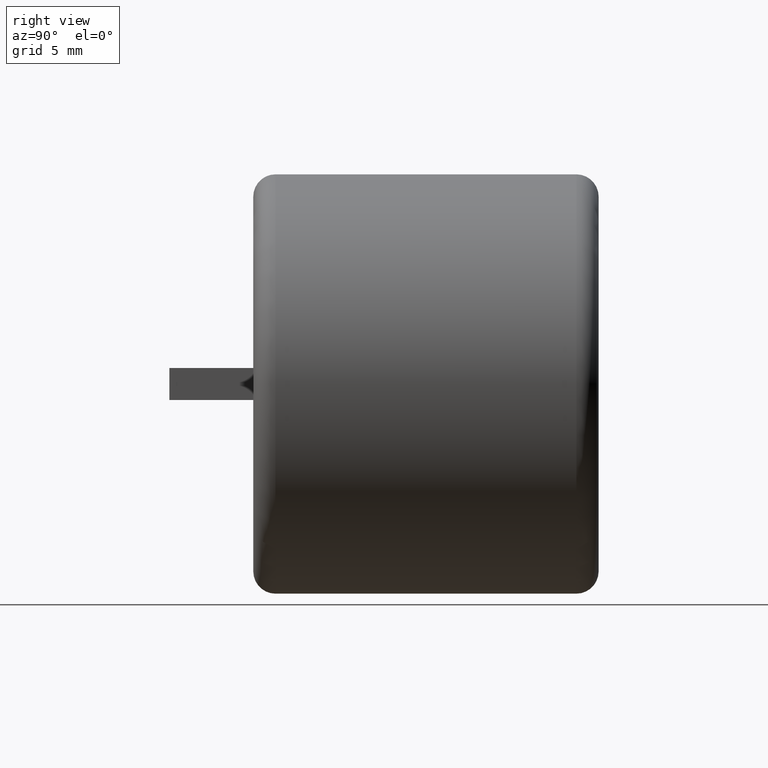
[diagram: clean part render]
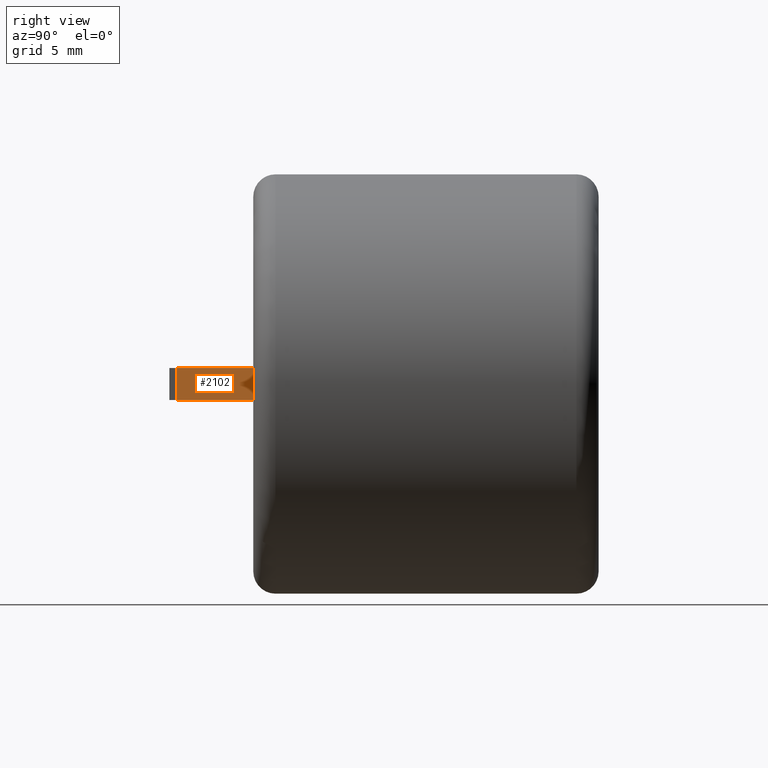
[diagram: same view with one face highlighted and labeled with its STEP entity id]
A machine part, right view. The second image highlights one B-rep face of the part: STEP entity #2102.
In plain terms, the highlighted planar face has unit normal (-1, 0, 0).
Its self-contained STEP definition (entity closure, byte-faithful):
#59 = PLANE ( 'NONE',  #2309 ) ;
#109 = VERTEX_POINT ( 'NONE', #2129 ) ;
#112 = CARTESIAN_POINT ( 'NONE',  ( 2.790000000000000000, 0.0000000000000000000, 0.6499999999999968000 ) ) ;
#165 = EDGE_CURVE ( 'NONE', #1216, #1392, #478, .T. ) ;
#265 = CARTESIAN_POINT ( 'NONE',  ( 2.790000000000000000, -3.100000000000000100, 0.6499999999999968000 ) ) ;
#409 = ORIENTED_EDGE ( 'NONE', *, *, #165, .F. ) ;
#478 = LINE ( 'NONE', #265, #1149 ) ;
#607 = ORIENTED_EDGE ( 'NONE', *, *, #1226, .F. ) ;
#693 = ORIENTED_EDGE ( 'NONE', *, *, #2264, .T. ) ;
#713 = DIRECTION ( 'NONE',  ( 0.0000000000000000000, 0.0000000000000000000, 1.000000000000000000 ) ) ;
#727 = CARTESIAN_POINT ( 'NONE',  ( 2.790000000000000000, -3.100000000000000100, -3.154584513016134000E-015 ) ) ;
#925 = EDGE_CURVE ( 'NONE', #2752, #1392, #1104, .T. ) ;
#927 = DIRECTION ( 'NONE',  ( -0.0000000000000000000, 1.000000000000000000, -0.0000000000000000000 ) ) ;
#1104 = LINE ( 'NONE', #2720, #2168 ) ;
#1149 = VECTOR ( 'NONE', #927, 1000.000000000000000 ) ;
#1158 = DIRECTION ( 'NONE',  ( 0.0000000000000000000, 0.0000000000000000000, 1.000000000000000000 ) ) ;
#1210 = LINE ( 'NONE', #2442, #2759 ) ;
#1216 = VERTEX_POINT ( 'NONE', #2230 ) ;
#1226 = EDGE_CURVE ( 'NONE', #109, #1216, #2445, .T. ) ;
#1257 = DIRECTION ( 'NONE',  ( 0.0000000000000000000, 0.0000000000000000000, 1.000000000000000000 ) ) ;
#1320 = VECTOR ( 'NONE', #1158, 1000.000000000000000 ) ;
#1392 = VERTEX_POINT ( 'NONE', #112 ) ;
#1614 = FACE_OUTER_BOUND ( 'NONE', #1952, .T. ) ;
#1819 = ORIENTED_EDGE ( 'NONE', *, *, #925, .T. ) ;
#1952 = EDGE_LOOP ( 'NONE', ( #1819, #409, #607, #693 ) ) ;
#2102 = ADVANCED_FACE ( 'NONE', ( #1614 ), #59, .F. ) ;
#2117 = CARTESIAN_POINT ( 'NONE',  ( 2.790000000000000000, 0.0000000000000000000, -0.6500000000000031300 ) ) ;
#2129 = CARTESIAN_POINT ( 'NONE',  ( 2.790000000000000000, -3.100000000000000100, -0.6500000000000031300 ) ) ;
#2168 = VECTOR ( 'NONE', #1257, 1000.000000000000000 ) ;
#2193 = DIRECTION ( 'NONE',  ( -1.000000000000000000, 0.0000000000000000000, 0.0000000000000000000 ) ) ;
#2230 = CARTESIAN_POINT ( 'NONE',  ( 2.790000000000000000, -3.100000000000000100, 0.6499999999999968000 ) ) ;
#2264 = EDGE_CURVE ( 'NONE', #109, #2752, #1210, .T. ) ;
#2309 = AXIS2_PLACEMENT_3D ( 'NONE', #727, #2193, #713 ) ;
#2429 = CARTESIAN_POINT ( 'NONE',  ( 2.790000000000000000, -3.100000000000000100, -0.6500000000000031300 ) ) ;
#2442 = CARTESIAN_POINT ( 'NONE',  ( 2.790000000000000000, -3.100000000000000100, -0.6500000000000031300 ) ) ;
#2445 = LINE ( 'NONE', #2429, #1320 ) ;
#2659 = DIRECTION ( 'NONE',  ( -0.0000000000000000000, 1.000000000000000000, -0.0000000000000000000 ) ) ;
#2720 = CARTESIAN_POINT ( 'NONE',  ( 2.790000000000000000, 0.0000000000000000000, -3.154584513016134000E-015 ) ) ;
#2752 = VERTEX_POINT ( 'NONE', #2117 ) ;
#2759 = VECTOR ( 'NONE', #2659, 1000.000000000000000 ) ;